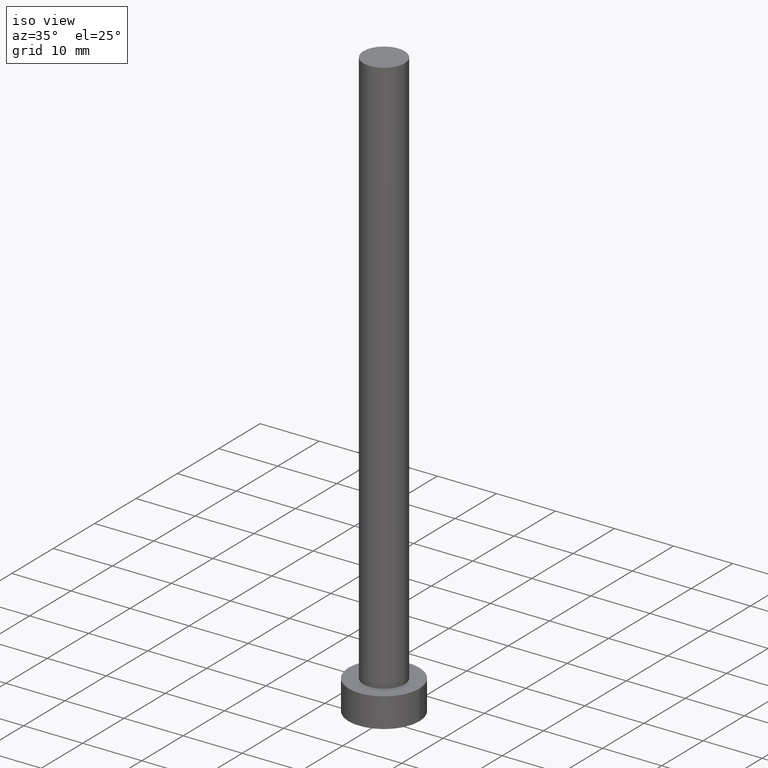
[diagram: clean part render]
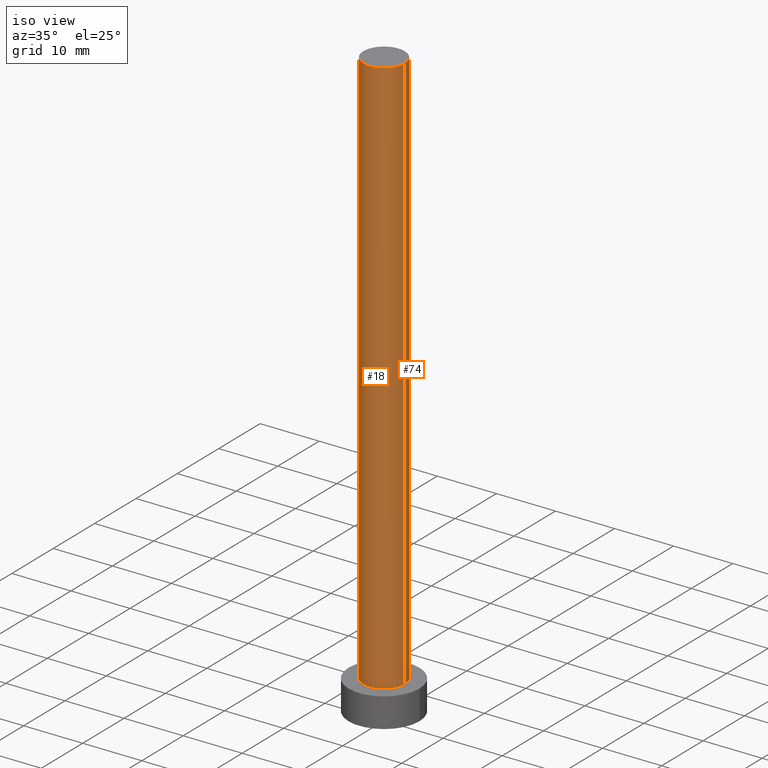
[diagram: same view with one multi-face feature highlighted, each face labeled with its STEP entity id]
A machine part, iso view. The highlighted faces form ONE feature: a constant-radius fillet chain: 2 tangent blend faces with common blend radius 3.5 mm. The faces share edges in the B-rep.
Their STEP definitions:
[1] entity #18 (Cylinder):
#1 = VERTEX_POINT ( 'NONE', #223 ) ;
#2 = DIRECTION ( 'NONE',  ( -0.000000000000000000, -0.000000000000000000, -1.000000000000000000 ) ) ;
#6 = CIRCLE ( 'NONE', #183, 3.500000000000000000 ) ;
#8 = ORIENTED_EDGE ( 'NONE', *, *, #162, .T. ) ;
#16 = DIRECTION ( 'NONE',  ( -0.000000000000000000, -0.000000000000000000, -1.000000000000000000 ) ) ;
#18 = ADVANCED_FACE ( 'NONE', ( #167 ), #56, .T. ) ;
#25 = ORIENTED_EDGE ( 'NONE', *, *, #176, .F. ) ;
#28 = VERTEX_POINT ( 'NONE', #92 ) ;
#35 = CARTESIAN_POINT ( 'NONE',  ( 0.000000000000000000, 0.000000000000000000, 5.000000000000000000 ) ) ;
#36 = VECTOR ( 'NONE', #61, 1000.000000000000000 ) ;
#37 = DIRECTION ( 'NONE',  ( 0.000000000000000000, 0.000000000000000000, 1.000000000000000000 ) ) ;
#44 = VECTOR ( 'NONE', #2, 1000.000000000000000 ) ;
#46 = CARTESIAN_POINT ( 'NONE',  ( 3.500000000000000000, 4.286263797015736595E-16, 5.000000000000000000 ) ) ;
#56 = CYLINDRICAL_SURFACE ( 'NONE', #107, 3.500000000000000000 ) ;
#61 = DIRECTION ( 'NONE',  ( -0.000000000000000000, -0.000000000000000000, -1.000000000000000000 ) ) ;
#75 = DIRECTION ( 'NONE',  ( 1.000000000000000000, 0.000000000000000000, 0.000000000000000000 ) ) ;
#92 = CARTESIAN_POINT ( 'NONE',  ( -3.500000000000000000, 0.000000000000000000, 100.0000000000000000 ) ) ;
#98 = EDGE_LOOP ( 'NONE', ( #25, #105, #195, #8 ) ) ;
#99 = EDGE_CURVE ( 'NONE', #28, #139, #6, .T. ) ;
#105 = ORIENTED_EDGE ( 'NONE', *, *, #99, .F. ) ;
#107 = AXIS2_PLACEMENT_3D ( 'NONE', #187, #16, #202 ) ;
#108 = EDGE_CURVE ( 'NONE', #28, #1, #231, .T. ) ;
#110 = LINE ( 'NONE', #228, #36 ) ;
#112 = CARTESIAN_POINT ( 'NONE',  ( 0.000000000000000000, 0.000000000000000000, 100.0000000000000000 ) ) ;
#120 = CARTESIAN_POINT ( 'NONE',  ( 3.500000000000000000, 4.286263797015736595E-16, 100.0000000000000000 ) ) ;
#136 = DIRECTION ( 'NONE',  ( 1.000000000000000000, 0.000000000000000000, 0.000000000000000000 ) ) ;
#139 = VERTEX_POINT ( 'NONE', #120 ) ;
#141 = VERTEX_POINT ( 'NONE', #46 ) ;
#161 = CARTESIAN_POINT ( 'NONE',  ( -3.500000000000000000, 0.000000000000000000, 100.0000000000000000 ) ) ;
#162 = EDGE_CURVE ( 'NONE', #1, #141, #219, .T. ) ;
#167 = FACE_OUTER_BOUND ( 'NONE', #98, .T. ) ;
#176 = EDGE_CURVE ( 'NONE', #139, #141, #110, .T. ) ;
#183 = AXIS2_PLACEMENT_3D ( 'NONE', #112, #37, #136 ) ;
#187 = CARTESIAN_POINT ( 'NONE',  ( 0.000000000000000000, 0.000000000000000000, 100.0000000000000000 ) ) ;
#195 = ORIENTED_EDGE ( 'NONE', *, *, #108, .T. ) ;
#202 = DIRECTION ( 'NONE',  ( -1.000000000000000000, 0.000000000000000000, 0.000000000000000000 ) ) ;
#219 = CIRCLE ( 'NONE', #253, 3.500000000000000000 ) ;
#223 = CARTESIAN_POINT ( 'NONE',  ( -3.500000000000000000, 0.000000000000000000, 5.000000000000000000 ) ) ;
#228 = CARTESIAN_POINT ( 'NONE',  ( 3.500000000000000000, 4.286263797015736595E-16, 100.0000000000000000 ) ) ;
#231 = LINE ( 'NONE', #161, #44 ) ;
#249 = DIRECTION ( 'NONE',  ( 0.000000000000000000, 0.000000000000000000, 1.000000000000000000 ) ) ;
#253 = AXIS2_PLACEMENT_3D ( 'NONE', #35, #249, #75 ) ;
[2] entity #74 (Cylinder):
#1 = VERTEX_POINT ( 'NONE', #223 ) ;
#2 = DIRECTION ( 'NONE',  ( -0.000000000000000000, -0.000000000000000000, -1.000000000000000000 ) ) ;
#10 = ORIENTED_EDGE ( 'NONE', *, *, #176, .T. ) ;
#11 = CARTESIAN_POINT ( 'NONE',  ( 0.000000000000000000, 0.000000000000000000, 100.0000000000000000 ) ) ;
#28 = VERTEX_POINT ( 'NONE', #92 ) ;
#36 = VECTOR ( 'NONE', #61, 1000.000000000000000 ) ;
#44 = VECTOR ( 'NONE', #2, 1000.000000000000000 ) ;
#46 = CARTESIAN_POINT ( 'NONE',  ( 3.500000000000000000, 4.286263797015736595E-16, 5.000000000000000000 ) ) ;
#47 = EDGE_LOOP ( 'NONE', ( #180, #10, #160, #87 ) ) ;
#51 = CARTESIAN_POINT ( 'NONE',  ( 0.000000000000000000, 0.000000000000000000, 5.000000000000000000 ) ) ;
#59 = EDGE_CURVE ( 'NONE', #141, #1, #158, .T. ) ;
#61 = DIRECTION ( 'NONE',  ( -0.000000000000000000, -0.000000000000000000, -1.000000000000000000 ) ) ;
#74 = ADVANCED_FACE ( 'NONE', ( #96 ), #173, .T. ) ;
#76 = DIRECTION ( 'NONE',  ( -1.000000000000000000, 0.000000000000000000, 0.000000000000000000 ) ) ;
#78 = AXIS2_PLACEMENT_3D ( 'NONE', #250, #227, #76 ) ;
#87 = ORIENTED_EDGE ( 'NONE', *, *, #108, .F. ) ;
#92 = CARTESIAN_POINT ( 'NONE',  ( -3.500000000000000000, 0.000000000000000000, 100.0000000000000000 ) ) ;
#96 = FACE_OUTER_BOUND ( 'NONE', #47, .T. ) ;
#104 = DIRECTION ( 'NONE',  ( 0.000000000000000000, 0.000000000000000000, 1.000000000000000000 ) ) ;
#108 = EDGE_CURVE ( 'NONE', #28, #1, #231, .T. ) ;
#110 = LINE ( 'NONE', #228, #36 ) ;
#119 = AXIS2_PLACEMENT_3D ( 'NONE', #51, #248, #171 ) ;
#120 = CARTESIAN_POINT ( 'NONE',  ( 3.500000000000000000, 4.286263797015736595E-16, 100.0000000000000000 ) ) ;
#134 = AXIS2_PLACEMENT_3D ( 'NONE', #11, #104, #203 ) ;
#139 = VERTEX_POINT ( 'NONE', #120 ) ;
#141 = VERTEX_POINT ( 'NONE', #46 ) ;
#158 = CIRCLE ( 'NONE', #119, 3.500000000000000000 ) ;
#160 = ORIENTED_EDGE ( 'NONE', *, *, #59, .T. ) ;
#161 = CARTESIAN_POINT ( 'NONE',  ( -3.500000000000000000, 0.000000000000000000, 100.0000000000000000 ) ) ;
#171 = DIRECTION ( 'NONE',  ( 1.000000000000000000, 0.000000000000000000, 0.000000000000000000 ) ) ;
#173 = CYLINDRICAL_SURFACE ( 'NONE', #78, 3.500000000000000000 ) ;
#176 = EDGE_CURVE ( 'NONE', #139, #141, #110, .T. ) ;
#180 = ORIENTED_EDGE ( 'NONE', *, *, #242, .F. ) ;
#203 = DIRECTION ( 'NONE',  ( 1.000000000000000000, 0.000000000000000000, 0.000000000000000000 ) ) ;
#223 = CARTESIAN_POINT ( 'NONE',  ( -3.500000000000000000, 0.000000000000000000, 5.000000000000000000 ) ) ;
#227 = DIRECTION ( 'NONE',  ( -0.000000000000000000, -0.000000000000000000, -1.000000000000000000 ) ) ;
#228 = CARTESIAN_POINT ( 'NONE',  ( 3.500000000000000000, 4.286263797015736595E-16, 100.0000000000000000 ) ) ;
#231 = LINE ( 'NONE', #161, #44 ) ;
#242 = EDGE_CURVE ( 'NONE', #139, #28, #243, .T. ) ;
#243 = CIRCLE ( 'NONE', #134, 3.500000000000000000 ) ;
#248 = DIRECTION ( 'NONE',  ( 0.000000000000000000, 0.000000000000000000, 1.000000000000000000 ) ) ;
#250 = CARTESIAN_POINT ( 'NONE',  ( 0.000000000000000000, 0.000000000000000000, 100.0000000000000000 ) ) ;